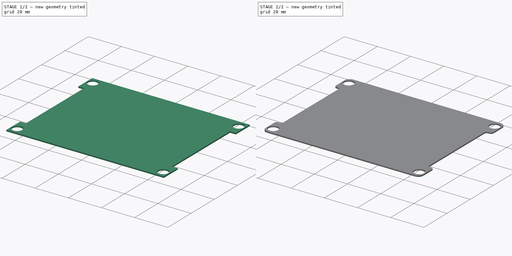
[diagram: build sequence overview — one tinted view per stage of 2, left to right]
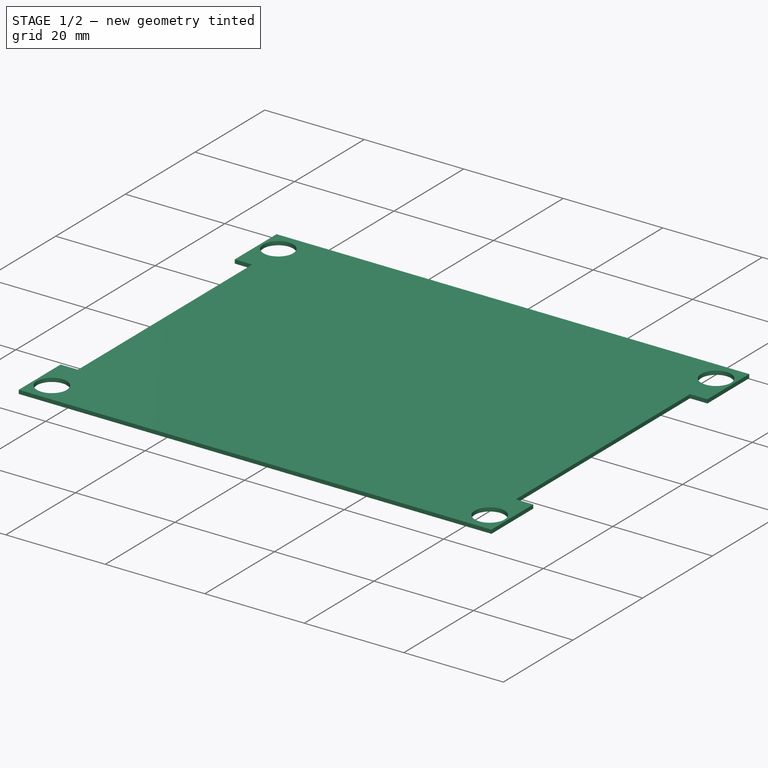
[diagram: stage 1 of 2 — iso view after this stage's code; geometry added in this stage tinted green]
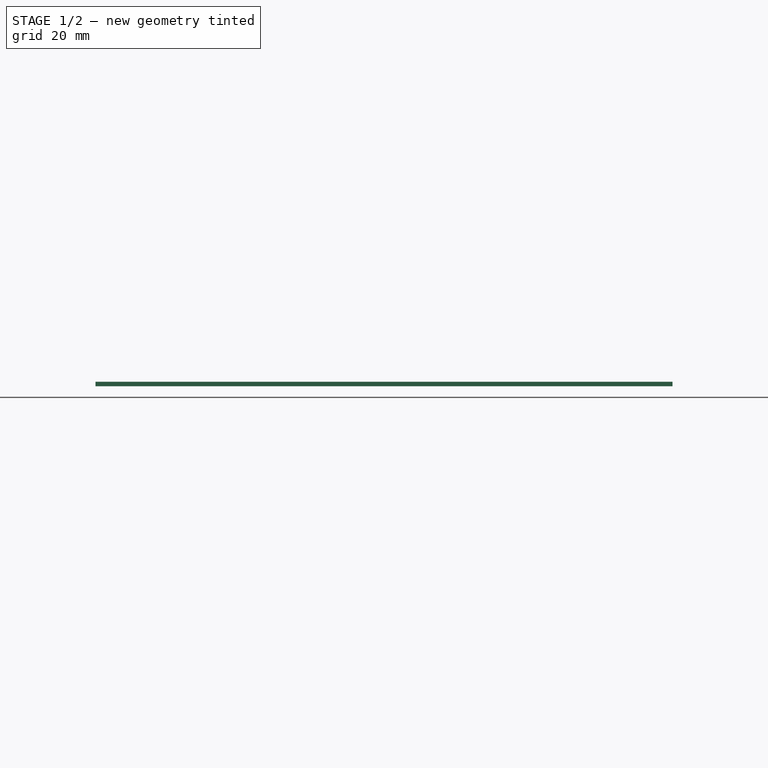
[diagram: stage 1 of 2 — front view after this stage's code; geometry added in this stage tinted green]
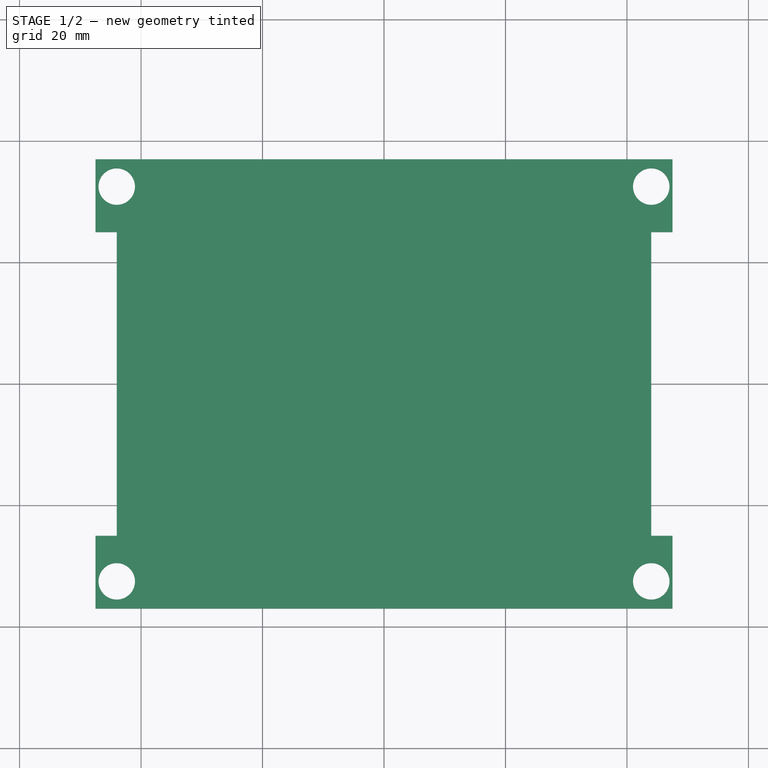
[diagram: stage 1 of 2 — top view after this stage's code; geometry added in this stage tinted green]
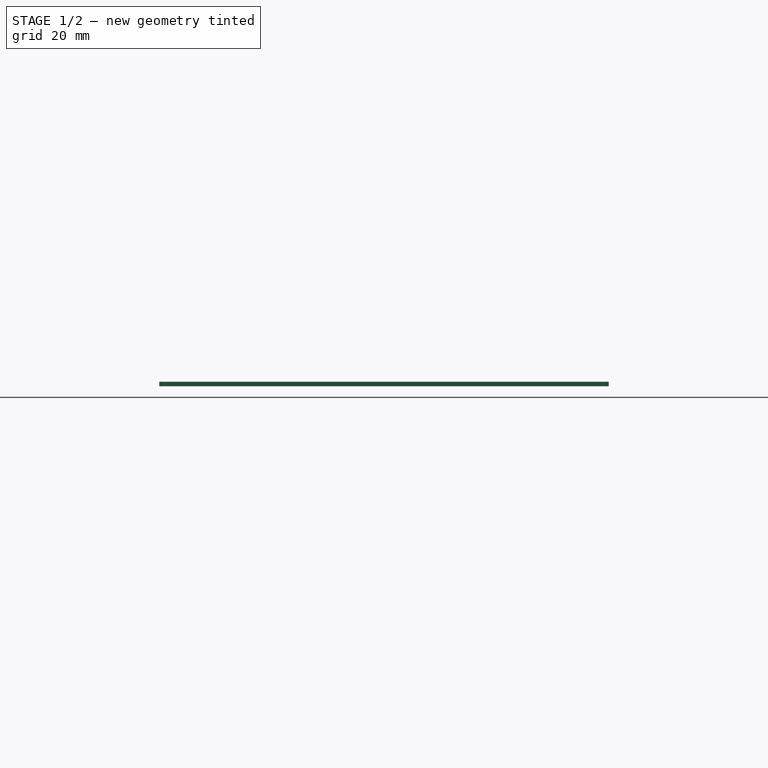
[diagram: stage 1 of 2 — right view after this stage's code; geometry added in this stage tinted green]
FCSTD DOCUMENT  (FreeCAD 0.16R5861 (Git))
Label: plastic_laser_cut_lcd_cover
License: All rights reserved
LicenseURL: http://en.wikipedia.org/wiki/All_rights_reserved
objects: Drawing::FeatureView×18, Sketcher::SketchObject×2, PartDesign::Fillet×2, PartDesign::Pad×1, PartDesign::Pocket×1, Drawing::FeatureViewPart×1, Drawing::FeaturePage×1
note: 8 computed .brp shape members not serialized (recipe doc carries the construction recipe); baked Part::Feature solids carry a one-line shape summary decoded from their .brp

FEATURE [Sketcher::SketchObject] Sketch
  sketch-geometry (4):
    g0: LineSegment StartX=-47.5 StartY=37 StartZ=0 EndX=47.5 EndY=37 EndZ=0
    g1: LineSegment StartX=47.5 StartY=37 StartZ=0 EndX=47.5 EndY=-37 EndZ=0
    g2: LineSegment StartX=47.5 StartY=-37 StartZ=0 EndX=-47.5 EndY=-37 EndZ=0
    g3: LineSegment StartX=-47.5 StartY=-37 StartZ=0 EndX=-47.5 EndY=37 EndZ=0
  constraints (12):
    c: Coincident(g0,g1)
    c: Coincident(g1,g2)
    c: Coincident(g2,g3)
    c: Coincident(g3,g0)
    c: Horizontal(g0)
    c: Horizontal(g2)
    c: Vertical(g1)
    c: Vertical(g3)
    c: DistanceY(g1) = -74
    c: DistanceY(g-1,g0) = 37
    c: DistanceX(g0) = 95
    c: DistanceX(g-1,g0) = -47.5
FEATURE [PartDesign::Pad] Pad
  Length = 0.76
  Length2 = 100
  Sketch = -> Sketch
  Type = 0
FEATURE [Sketcher::SketchObject] Sketch001
  Placement = pos=(0,0,0.76) rot=(0,0,1;0rad)
  Support = -> Pad [Face6]
  sketch-geometry (16):
    g0: LineSegment [constr] StartX=-44 StartY=32.5 StartZ=0 EndX=44 EndY=32.5 EndZ=0
    g1: LineSegment [constr] StartX=44 StartY=32.5 StartZ=0 EndX=44 EndY=-32.5 EndZ=0
    g2: LineSegment [constr] StartX=44 StartY=-32.5 StartZ=0 EndX=-44 EndY=-32.5 EndZ=0
    g3: LineSegment [constr] StartX=-44 StartY=-32.5 StartZ=0 EndX=-44 EndY=32.5 EndZ=0
    g4: Circle CenterX=-44 CenterY=32.5 CenterZ=0 NormalX=0 NormalY=0 NormalZ=1 Radius=3
    g5: Circle CenterX=44 CenterY=32.5 CenterZ=0 NormalX=0 NormalY=0 NormalZ=1 Radius=3
    g6: Circle CenterX=44 CenterY=-32.5 CenterZ=0 NormalX=0 NormalY=0 NormalZ=1 Radius=3
    g7: Circle CenterX=-44 CenterY=-32.5 CenterZ=0 NormalX=0 NormalY=0 NormalZ=1 Radius=3
    g8: LineSegment StartX=44 StartY=25 StartZ=0 EndX=64 EndY=25 EndZ=0
    g9: LineSegment StartX=64 StartY=25 StartZ=0 EndX=64 EndY=-25 EndZ=0
    g10: LineSegment StartX=64 StartY=-25 StartZ=0 EndX=44 EndY=-25 EndZ=0
    g11: LineSegment StartX=44 StartY=-25 StartZ=0 EndX=44 EndY=25 EndZ=0
    g12: LineSegment StartX=-64 StartY=25 StartZ=0 EndX=-44 EndY=25 EndZ=0
    g13: LineSegment StartX=-44 StartY=25 StartZ=0 EndX=-44 EndY=-25 EndZ=0
    g14: LineSegment StartX=-44 StartY=-25 StartZ=0 EndX=-64 EndY=-25 EndZ=0
    g15: LineSegment StartX=-64 StartY=-25 StartZ=0 EndX=-64 EndY=25 EndZ=0
  constraints (44):
    c: Coincident(g0,g1)
    c: Coincident(g1,g2)
    c: Coincident(g2,g3)
    c: Coincident(g3,g0)
    c: Horizontal(g0)
    c: Horizontal(g2)
    c: Vertical(g1)
    c: Vertical(g3)
    c: DistanceX(g0) = 88
    c: DistanceY(g1) = -65
    c: DistanceY(g-1,g1) = -32.5
    c: Coincident(g2,g7)
    c: Coincident(g0,g4)
    c: Coincident(g0,g5)
    c: Coincident(g1,g6)
    c: Radius(g6) = 3
    c: Equal(g5,g6)
    c: Equal(g6,g7)
    c: Equal(g7,g4)
    c: Coincident(g8,g9)
    c: Coincident(g9,g10)
    c: Coincident(g10,g11)
    c: Coincident(g11,g8)
    c: Horizontal(g8)
    c: Horizontal(g10)
    c: Vertical(g9)
    c: Vertical(g11)
    c: Coincident(g12,g13)
    c: Coincident(g13,g14)
    c: Coincident(g14,g15)
    c: Coincident(g15,g12)
    c: Horizontal(g12)
    c: Horizontal(g14)
    c: Vertical(g13)
    c: Vertical(g15)
    c: DistanceY(g11) = 50
    c: DistanceY(g-1,g10) = -25
    c: Equal(g11,g13)
    c: DistanceY(g-1,g13) = -25
    c: DistanceX(g8) = 20
    c: Equal(g12,g8)
    c: DistanceX(g-1,g1) = 44
    c: DistanceX(g-1,g12) = -44
    c: DistanceX(g-1,g8) = 44
FEATURE [PartDesign::Pocket] Pocket
  Length = 5
  Sketch = -> Sketch001
  Type = 0
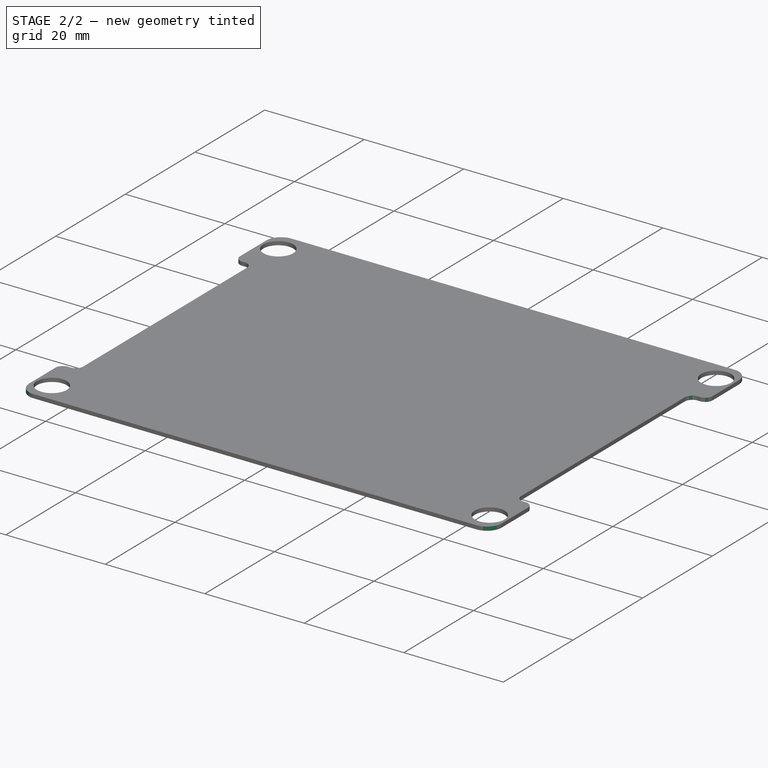
[diagram: stage 2 of 2 — iso view after this stage's code; geometry added in this stage tinted green]
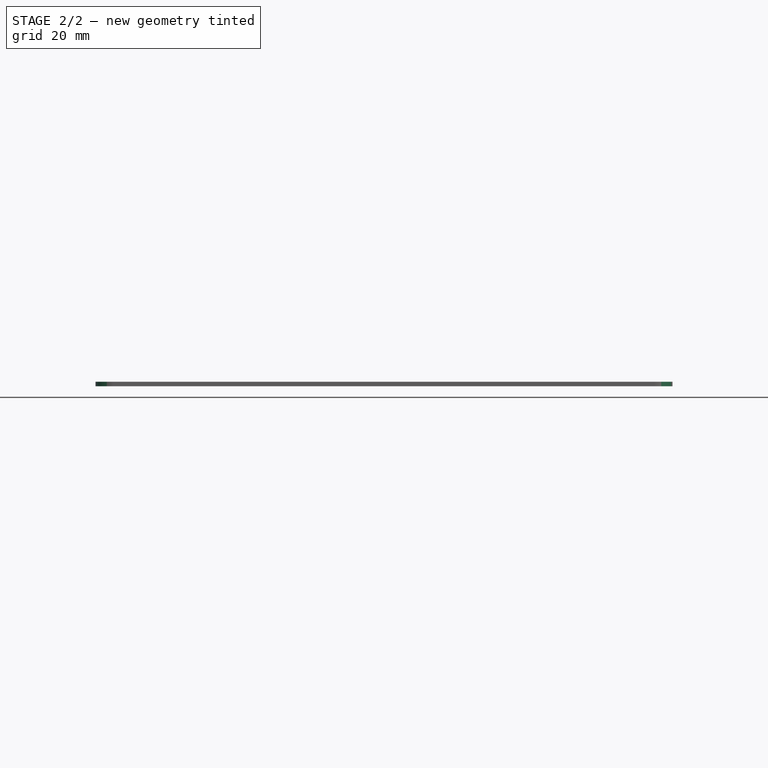
[diagram: stage 2 of 2 — front view after this stage's code; geometry added in this stage tinted green]
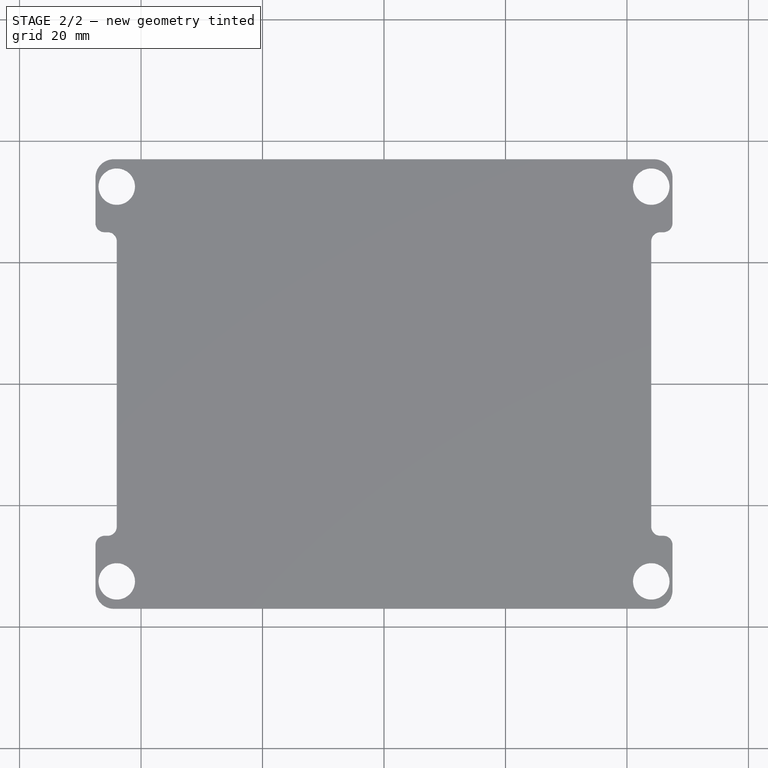
[diagram: stage 2 of 2 — top view after this stage's code; geometry added in this stage tinted green]
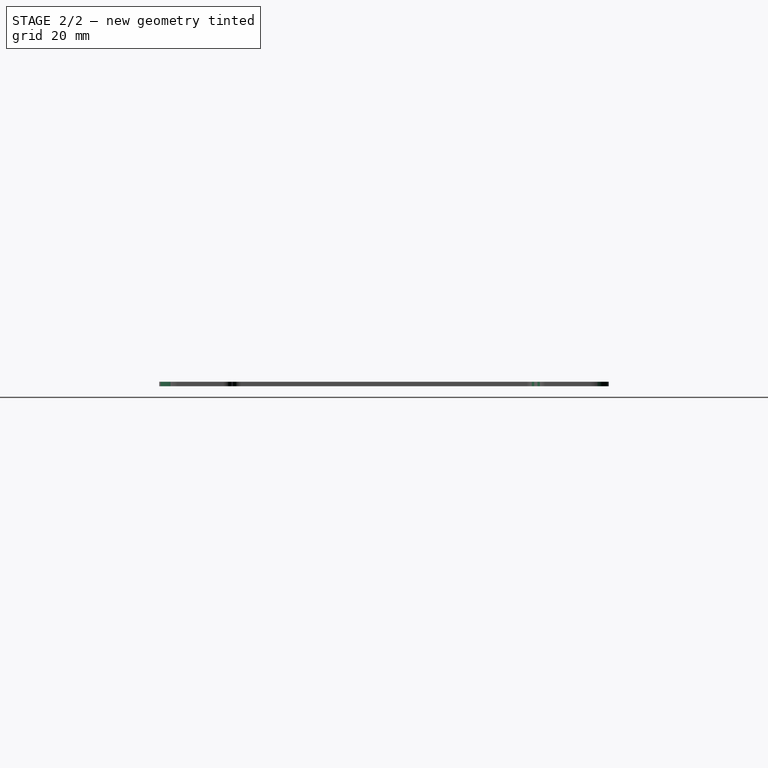
[diagram: stage 2 of 2 — right view after this stage's code; geometry added in this stage tinted green]
FEATURE [PartDesign::Fillet] Fillet
  Base = -> Pocket [Edge1,Edge2,Edge41,Edge42]
  Radius = 3
FEATURE [PartDesign::Fillet] Fillet001
  Base = -> Fillet [Edge52,Edge50,Edge48,Edge46,Edge47,Edge45,Edge49,Edge51]
  Radius = 1.5
FEATURE [Drawing::FeatureView] dimText001
  Rotation = 0
  ViewResult = <g> <text x="171.817177" y="55.285022" font-family="inherit" font-size="5" fill="rgb(0,0,0)" text-anchor="inherit"  >NOTES</text> </g>
  Visible = true
  X = 0
  Y = 0
FEATURE [Drawing::FeatureView] dimText002
  Rotation = 0
  ViewResult = <g> <text x="172.088182" y="62.873163" font-family="inherit" font-size="3.5" fill="rgb(0,0,0)" text-anchor="inherit"  >1.  MATERIAL: 0.03" THICK IMPACT RESISTANT PC FILM, </text> </g>
  Visible = true
  X = 0
  Y = 0
FEATURE [Drawing::FeatureView] dimText003
  Rotation = 0
  ViewResult = <g> <text x="175.611247" y="69.377283" font-family="inherit" font-size="3.5" fill="rgb(0,0,0)" text-anchor="inherit"  >CLEAR, SMOOTH FINISH</text> </g>
  Visible = true
  X = 0
  Y = 0
FEATURE [Drawing::FeatureView] dimText004
  Rotation = 0
  ViewResult = <g> <text x="172.144015" y="75.592182" font-family="inherit" font-size="3.5" fill="rgb(0,0,0)" text-anchor="inherit"  >2.  MCMASTER P/N 85585K27 OR EQUIVALENT ALLOWED</text> </g>
  Visible = true
  X = 0
  Y = 0
FEATURE [Drawing::FeatureView] dimText006
  Rotation = 0
  ViewResult = <g> <text x="197.833658" y="145.258686" font-family="inherit" font-size="5" fill="rgb(0,0,0)" text-anchor="inherit"  >VERSION</text> </g>
  Visible = true
  X = 0
  Y = 0
FEATURE [Drawing::FeatureView] dimText007
  Rotation = 0
  ViewResult = <g> <text x="230.083254" y="144.987681" font-family="inherit" font-size="5" fill="rgb(0,0,0)" text-anchor="inherit"  >DESCRIPTION</text> </g>
  Visible = true
  X = 0
  Y = 0
FEATURE [Drawing::FeatureView] dimText008
  Rotation = 0
  ViewResult = <g> <text x="204.066773" y="153.659841" font-family="inherit" font-size="3.5" fill="rgb(0,0,0)" text-anchor="inherit"  >V1.0</text> </g>
  Visible = true
  X = 0
  Y = 0
FEATURE [Drawing::FeatureView] dimText009
  Rotation = 0
  ViewResult = <g> <text x="230.625264" y="152.846826" font-family="inherit" font-size="3.5" fill="rgb(0,0,0)" text-anchor="inherit"  >INTITIAL RELEASE</text> </g>
  Visible = true
  X = 0
  Y = 0
FEATURE [Drawing::FeatureViewPart] Ortho001  label="Ortho_0_1"
  Direction = (0,0,-1)
  HiddenWidth = 0.15
  LineWidth = 0.35
  Rotation = 180
  ShowHiddenLines = false
  ShowSmoothLines = false
  Source = -> Fillet001
  Tolerance = 0.05
  ViewResult = <g id="Ortho_0_1"\n   transform="rotate(180,90,100) translate(90,100) scale(1,1)"\n  >\n<g   stroke="rgb(0, 0, 0)"\n   stroke-width="0.35"\n   stroke-linecap="butt"\n   stroke-linejoin="miter"\n   fill="none"\n   transform="scale(1,-1)"\n  >\n<path id= "1" d=" M 47.5 26.5 L 47.5 34 " />\n<path d="M47.5 26.5 A1.5 1.5 0 0 0 46 25" /><path d="M44.5 37 A3 3 0 0 0 47.5 34" /><path id= "4" d=" M 46 25 L 45.5 25 " />\n<path id= "5" d=" M 44.5 37 L -44.5 37 " />\n<path d="M45.5 25 A1.5 1.5 0 0 1 44 23.5" /><path d="M-44.5 37 A3 3 0 0 1 -47.5 34" /><path id= "8" d=" M 44 23.5 L 44 -23.5 " />\n<path id= "9" d=" M -47.5 34 L -47.5 26.5 " />\n<path d="M44 -23.5 A1.5 1.5 0 0 1 45.5 -25" /><path d="M-47.5 26.5 A1.5 1.5 0 0 1 -46 25" /><path id= "12" d=" M 45.5 -25 L 46 -25 " />\n<path id= "13" d=" M -45.5 25 L -46 25 " />\n<path d="M46 -25 A1.5 1.5 0 0 0 47.5 -26.5" /><path d="M-45.5 25 A1.5 1.5 0 0 0 -44 23.5" /><path id= "16" d=" M 47.5 -34 L 47.5 -26.5 " />\n<path id= "17" d=" M -44 -23.5 L -44 23.5 " />\n<path d="M44.5 -37 A3 3 0 0 1 47.5 -34" /><path d="M-44 -23.5 A1.5 1.5 0 0 0 -45.5 -25" /><path id= "20" d=" M -44.5 -37 L 44.5 -37 " />\n<path id= "21" d=" M -46 -25 L -45.5 -25 " />\n<path d="M-47.5 -34 A3 3 0 0 1 -44.5 -37" /><path d="M-46 -25 A1.5 1.5 0 0 1 -47.5 -26.5" /><path id= "24" d=" M -47.5 -26.5 L -47.5 -34 " />\n<circle cx ="44" cy ="-32.5" r ="3" /><circle cx ="-44" cy ="-32.5" r ="3" /><circle cx ="-44" cy ="32.5" r ="3" /><circle cx ="44" cy ="32.5" r ="3" /></g>\n</g>
  Visible = true
  X = 90
  Y = 100
FEATURE [Drawing::FeatureView] dim001
  Rotation = 0
  ViewResult = <g>  <circle cx ="134.000000" cy ="132.500000" r="0.500000" stroke="none" fill="rgb(0,0,255)" /> \n<line x1="124.550432" y1="150.950419" x2="135.367554" y2="129.829832" style="stroke:rgb(0,0,255);stroke-width:0.20" />\n<polygon points="132.632446,135.170168 130.597351,137.498448 131.264893,137.840336 131.932435,138.182224" style="fill:rgb(0,0,255);stroke:rgb(0,0,255);stroke-width:0" />\n<polygon points="135.367554,129.829832 137.402649,127.501552 136.735107,127.159664 136.067565,126.817776" style="fill:rgb(0,0,255);stroke:rgb(0,0,255);stroke-width:0" />\n<line x1="124.550432" y1="150.950419" x2="88.740549" y2="150.950419" style="stroke:rgb(0,0,255);stroke-width:0.20" />\n<text x="106.645490" y="149.950419" font-family="Verdana" font-size="3.6" fill="rgb(0,0,255)" text-anchor="middle"  >4XØ6</text> </g>
  Visible = true
  X = 0
  Y = 0
FEATURE [Drawing::FeatureView] dim004
  Rotation = 0
  ViewResult = <g> \n  <line x1="46.000000" y1="130.500000" x2="46.000000" y2="56.136890" style="stroke:rgb(0,0,255);stroke-width:0.20" />\n<line x1="134.000000" y1="130.500000" x2="134.000000" y2="56.136890" style="stroke:rgb(0,0,255);stroke-width:0.20" />\n<line x1="46.000000" y1="57.136890" x2="134.000000" y2="57.136890" style="stroke:rgb(0,0,255);stroke-width:0.20" /> \n  <polygon points="134.000000,57.136890 131.000000,56.386890 131.000000,57.136890 131.000000,57.886890" style="fill:rgb(0,0,255);stroke:rgb(0,0,255);stroke-width:0" /><polygon points="46.000000,57.136890 49.000000,57.886890 49.000000,57.136890 49.000000,56.386890" style="fill:rgb(0,0,255);stroke:rgb(0,0,255);stroke-width:0" /> \n  <text x="90.000000" y="56.136890" font-family="Verdana" font-size="3.6" fill="rgb(0,0,255)" text-anchor="middle" transform="rotate(0.000000 90.000000,56.136890)" >88</text> </g>
  Visible = true
  X = 0
  Y = 0
FEATURE [Drawing::FeatureView] dim008
  Rotation = 0
  ViewResult = <g> <line x1="42.000000" y1="75.000000" x2="32.649789" y2="75.000000" style="stroke:rgb(0,0,255);stroke-width:0.20" />\n<line x1="42.000000" y1="125.000000" x2="32.649789" y2="125.000000" style="stroke:rgb(0,0,255);stroke-width:0.20" />\n<line x1="33.649789" y1="75.000000" x2="33.649789" y2="125.000000" style="stroke:rgb(0,0,255);stroke-width:0.20" />\n<polygon points="33.649789,75.000000 32.899789,78.000000 33.649789,78.000000 34.399789,78.000000" style="fill:rgb(0,0,255);stroke:rgb(0,0,255);stroke-width:0" />\n<polygon points="33.649789,125.000000 34.399789,122.000000 33.649789,122.000000 32.899789,122.000000" style="fill:rgb(0,0,255);stroke:rgb(0,0,255);stroke-width:0" />\n<text x="32.649789" y="100.000000" font-family="Verdana" font-size="3.6" fill="rgb(0,0,255)" text-anchor="middle" transform="rotate(-90.000000 32.649789,100.000000)" >50</text> </g> 
  Visible = true
  X = 0
  Y = 0
FEATURE [Drawing::FeatureView] dim009
  Rotation = 0
  ViewResult = <g>  <circle cx ="134.500000" cy ="134.000000" r="0.500000" stroke="none" fill="rgb(0,0,255)" /> \n<line x1="142.451177" y1="141.854647" x2="134.500000" y2="134.000000" style="stroke:rgb(0,0,255);stroke-width:0.20" />\n<polygon points="136.634236,136.108326 138.241390,138.750210 138.768472,138.216651 139.295553,137.683092" style="fill:rgb(0,0,255);stroke:rgb(0,0,255);stroke-width:0" />\n<line x1="142.451177" y1="141.854647" x2="161.778723" y2="141.854647" style="stroke:rgb(0,0,255);stroke-width:0.20" />\n<text x="152.114950" y="140.854647" font-family="Verdana" font-size="3.6" fill="rgb(0,0,255)" text-anchor="middle"  >4X R3</text> </g>
  Visible = true
  X = 0
  Y = 0
FEATURE [Drawing::FeatureView] dim010
  Rotation = 0
  ViewResult = <g>  <circle cx ="136.000000" cy ="126.500000" r="0.500000" stroke="none" fill="rgb(0,0,255)" /> \n<line x1="140.780895" y1="120.140984" x2="136.000000" y2="126.500000" style="stroke:rgb(0,0,255);stroke-width:0.20" />\n<polygon points="136.901403,125.301054 139.303682,123.353862 138.704209,122.903161 138.104736,122.452459" style="fill:rgb(0,0,255);stroke:rgb(0,0,255);stroke-width:0" />\n<line x1="140.780895" y1="120.140984" x2="162.136641" y2="120.140984" style="stroke:rgb(0,0,255);stroke-width:0.20" />\n<text x="151.458768" y="119.140984" font-family="Verdana" font-size="3.6" fill="rgb(0,0,255)" text-anchor="middle"  >8X R1.5</text> </g>
  Visible = true
  X = 0
  Y = 0
FEATURE [Drawing::FeatureView] dim011
  Rotation = 0
  ViewResult = <g> \n  <line x1="132.000000" y1="67.500000" x2="25.915398" y2="67.500000" style="stroke:rgb(0,0,255);stroke-width:0.20" />\n<line x1="132.000000" y1="132.500000" x2="25.915398" y2="132.500000" style="stroke:rgb(0,0,255);stroke-width:0.20" />\n<line x1="26.915398" y1="67.500000" x2="26.915398" y2="132.500000" style="stroke:rgb(0,0,255);stroke-width:0.20" /> \n  <polygon points="26.915398,132.500000 27.665398,129.500000 26.915398,129.500000 26.165398,129.500000" style="fill:rgb(0,0,255);stroke:rgb(0,0,255);stroke-width:0" /><polygon points="26.915398,67.500000 26.165398,70.500000 26.915398,70.500000 27.665398,70.500000" style="fill:rgb(0,0,255);stroke:rgb(0,0,255);stroke-width:0" /> \n  <text x="25.915398" y="100.000000" font-family="Verdana" font-size="3.6" fill="rgb(0,0,255)" text-anchor="middle" transform="rotate(-90.000000 25.915398,100.000000)" >65</text> </g>
  Visible = true
  X = 0
  Y = 0
FEATURE [Drawing::FeatureView] dim012
  Rotation = 0
  ViewResult = <g> <line x1="43.500000" y1="63.000000" x2="18.613881" y2="63.000000" style="stroke:rgb(0,0,255);stroke-width:0.20" />\n<line x1="43.500000" y1="137.000000" x2="18.613881" y2="137.000000" style="stroke:rgb(0,0,255);stroke-width:0.20" />\n<line x1="19.613881" y1="63.000000" x2="19.613881" y2="137.000000" style="stroke:rgb(0,0,255);stroke-width:0.20" />\n<polygon points="19.613881,63.000000 18.863881,66.000000 19.613881,66.000000 20.363881,66.000000" style="fill:rgb(0,0,255);stroke:rgb(0,0,255);stroke-width:0" />\n<polygon points="19.613881,137.000000 20.363881,134.000000 19.613881,134.000000 18.863881,134.000000" style="fill:rgb(0,0,255);stroke:rgb(0,0,255);stroke-width:0" />\n<text x="18.613881" y="100.000000" font-family="Verdana" font-size="3.6" fill="rgb(0,0,255)" text-anchor="middle" transform="rotate(-90.000000 18.613881,100.000000)" >74</text> </g> 
  Visible = true
  X = 0
  Y = 0
FEATURE [Drawing::FeatureView] dim003
  Rotation = 0
  ViewResult = <g> <line x1="42.500000" y1="64.000000" x2="42.500000" y2="48.872450" style="stroke:rgb(0,0,255);stroke-width:0.20" />\n<line x1="137.500000" y1="64.000000" x2="137.500000" y2="48.872450" style="stroke:rgb(0,0,255);stroke-width:0.20" />\n<line x1="42.500000" y1="49.872450" x2="137.500000" y2="49.872450" style="stroke:rgb(0,0,255);stroke-width:0.20" />\n<polygon points="42.500000,49.872450 45.500000,50.622450 45.500000,49.872450 45.500000,49.122450" style="fill:rgb(0,0,255);stroke:rgb(0,0,255);stroke-width:0" />\n<polygon points="137.500000,49.872450 134.500000,49.122450 134.500000,49.872450 134.500000,50.622450" style="fill:rgb(0,0,255);stroke:rgb(0,0,255);stroke-width:0" />\n<text x="90.000000" y="48.872450" font-family="Verdana" font-size="3.6" fill="rgb(0,0,255)" text-anchor="middle" transform="rotate(-0.000000 90.000000,48.872450)" >95</text> </g> 
  Visible = true
  X = 0
  Y = 0
FEATURE [Drawing::FeatureView] dim002
  Rotation = 0
  ViewResult = <g> <line x1="137.500000" y1="64.000000" x2="137.500000" y2="56.078603" style="stroke:rgb(0,0,255);stroke-width:0.20" />\n<line x1="134.000000" y1="65.499993" x2="134.000000" y2="56.078603" style="stroke:rgb(0,0,255);stroke-width:0.20" />\n<line x1="137.500000" y1="57.078603" x2="134.000000" y2="57.078603" style="stroke:rgb(0,0,255);stroke-width:0.20" />\n<polygon points="137.500000,57.078603 140.500000,57.828603 140.500000,57.078603 140.500000,56.328603" style="fill:rgb(0,0,255);stroke:rgb(0,0,255);stroke-width:0" />\n<polygon points="134.000000,57.078603 131.000000,56.328603 131.000000,57.078603 131.000000,57.828603" style="fill:rgb(0,0,255);stroke:rgb(0,0,255);stroke-width:0" />\n<text x="145.093646" y="58.212534" font-family="Verdana" font-size="3.6" fill="rgb(0,0,255)" text-anchor="middle" transform="rotate(0.000000 145.093646,58.212534)" >3.5</text> </g> 
  Visible = true
  X = 0
  Y = 0
FEATURE [Drawing::FeatureView] dim007
  Rotation = 0
  ViewResult = <g> <line x1="42.500000" y1="64.000000" x2="42.500000" y2="56.092742" style="stroke:rgb(0,0,255);stroke-width:0.20" />\n<line x1="46.000000" y1="65.499993" x2="46.000000" y2="56.092742" style="stroke:rgb(0,0,255);stroke-width:0.20" />\n<line x1="42.500000" y1="57.092742" x2="46.000000" y2="57.092742" style="stroke:rgb(0,0,255);stroke-width:0.20" />\n<polygon points="42.500000,57.092742 39.500000,56.342742 39.500000,57.092742 39.500000,57.842742" style="fill:rgb(0,0,255);stroke:rgb(0,0,255);stroke-width:0" />\n<polygon points="46.000000,57.092742 49.000000,57.842742 49.000000,57.092742 49.000000,56.342742" style="fill:rgb(0,0,255);stroke:rgb(0,0,255);stroke-width:0" />\n<text x="35.767972" y="58.206860" font-family="Verdana" font-size="3.6" fill="rgb(0,0,255)" text-anchor="middle" transform="rotate(-0.000000 35.767972,58.206860)" >3.5</text> </g> 
  Visible = true
  X = 0
  Y = 0
FEATURE [Drawing::FeaturePage] Page
  EditableTexts = J PETTIT | 01.04.16 | Scale | PLASTIC LASER CUT LCD COVER | IR | PC-AS0041 | 1 of 1 | CLEAR PC
  Group = -> [dimText001,dimText002,dimText003,dimText004,dimText006,dimText007,dimText008,dimText009,Ortho001,dim001,dim004,dim008,dim009,dim010,dim011,dim012,dim003,dim002,dim007]
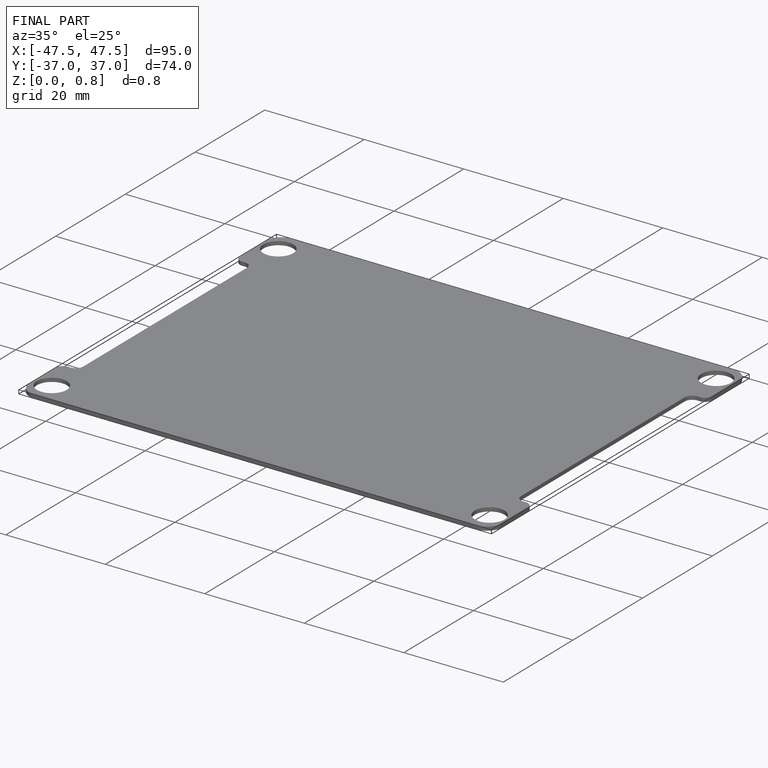
[diagram: finished part — iso view with bounding-box wireframe]
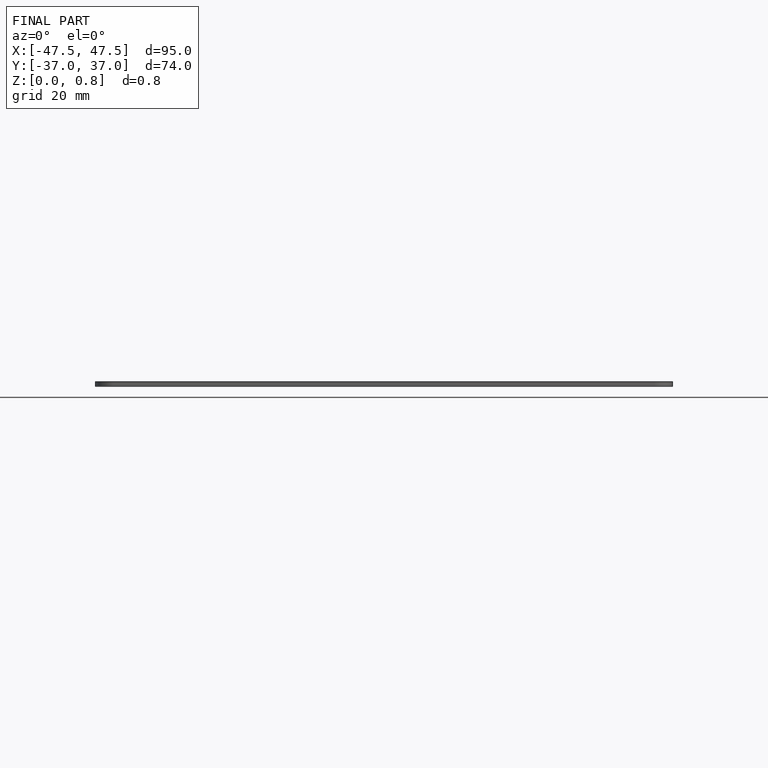
[diagram: finished part — front view with bounding-box wireframe]
